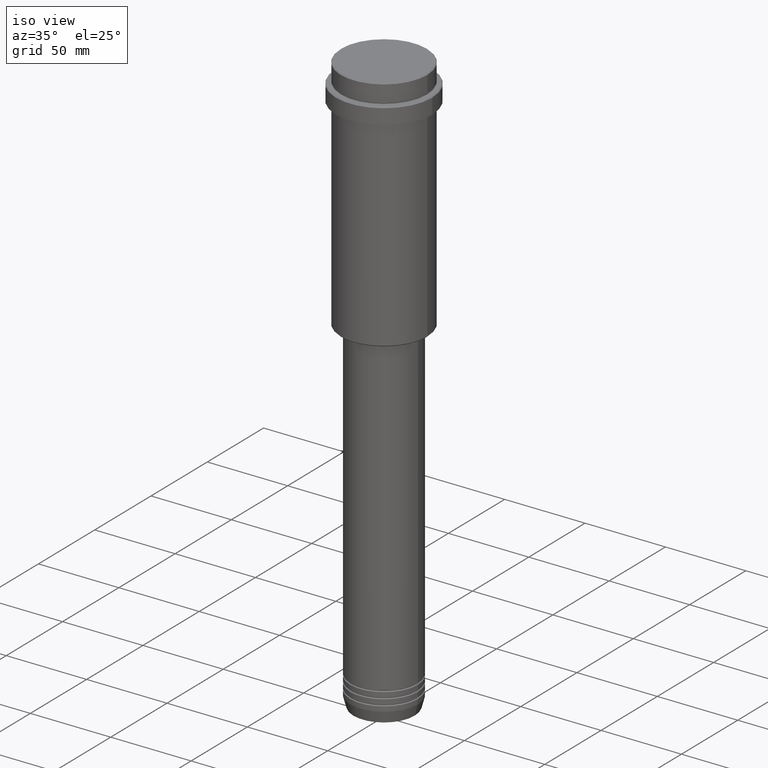
[diagram: clean part render]
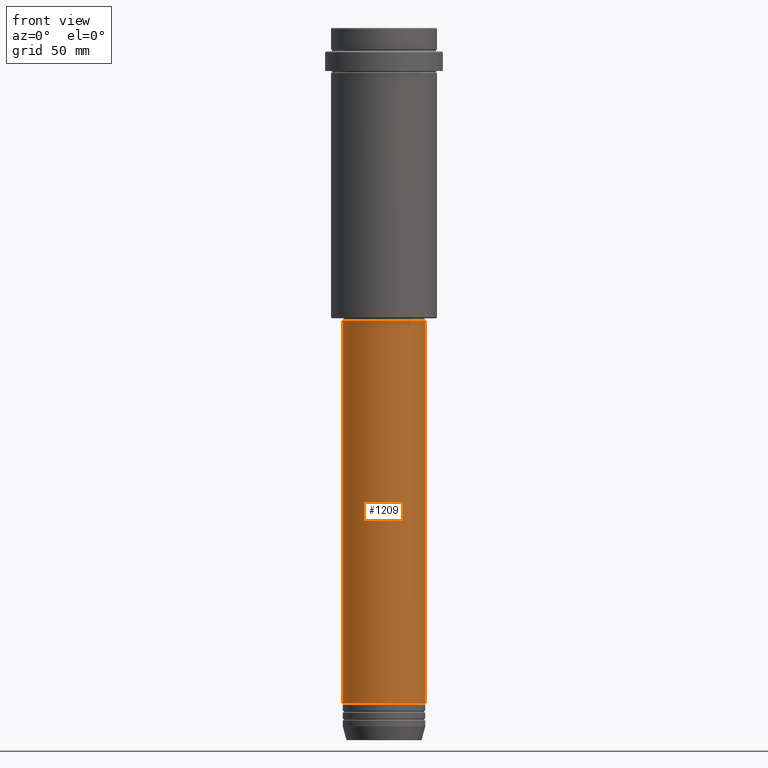
[diagram: tour spotlight — one face highlighted and labeled with its STEP entity id]
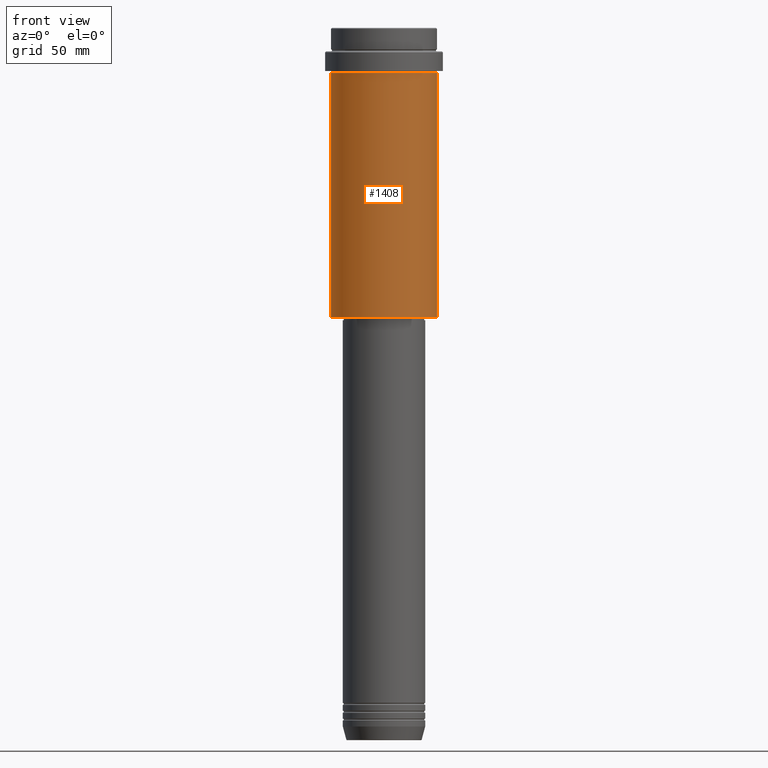
[diagram: tour spotlight — one face highlighted and labeled with its STEP entity id]
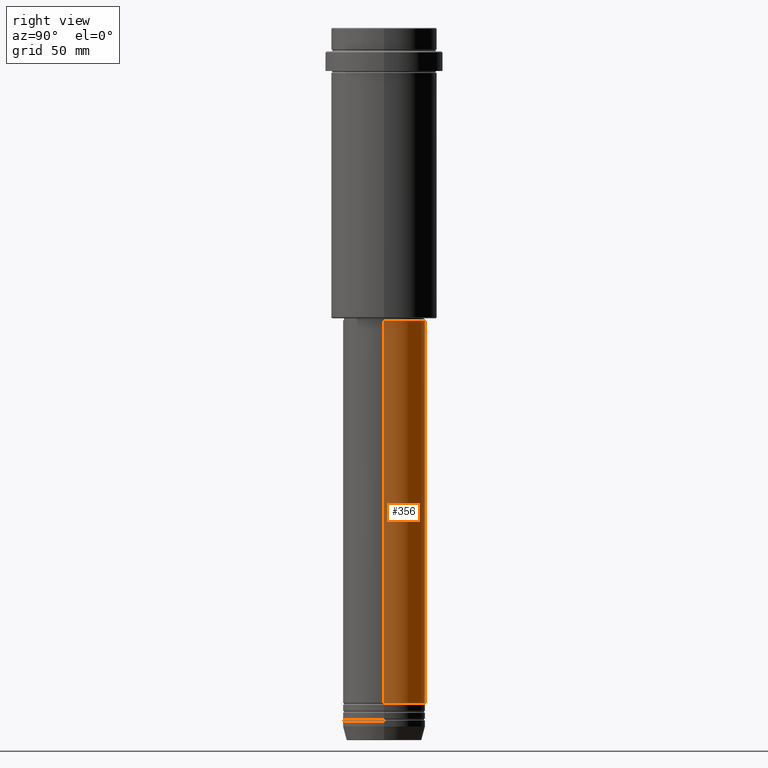
[diagram: tour spotlight — one face highlighted and labeled with its STEP entity id]
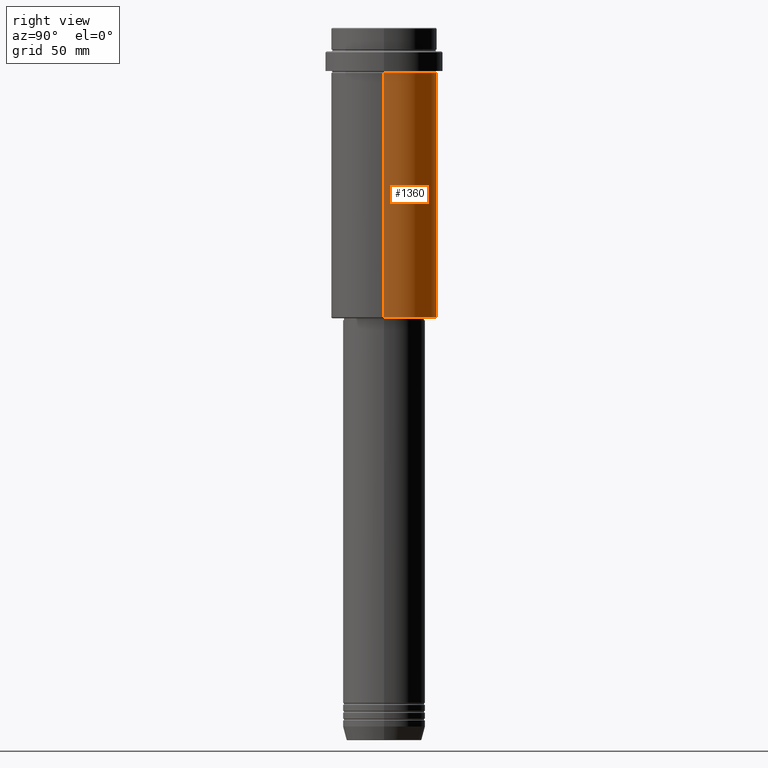
[diagram: tour spotlight — one face highlighted and labeled with its STEP entity id]
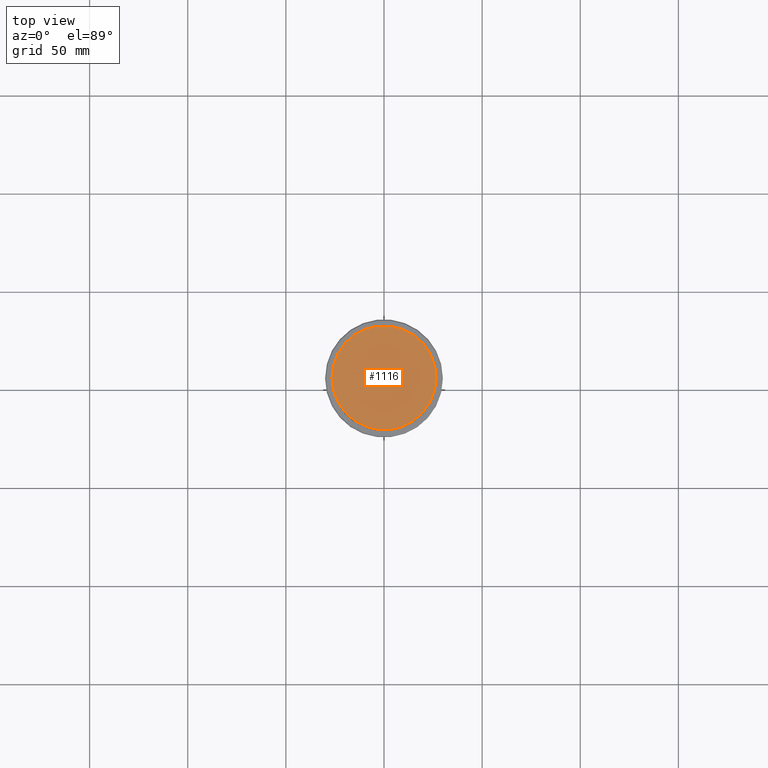
[diagram: tour spotlight — one face highlighted and labeled with its STEP entity id]
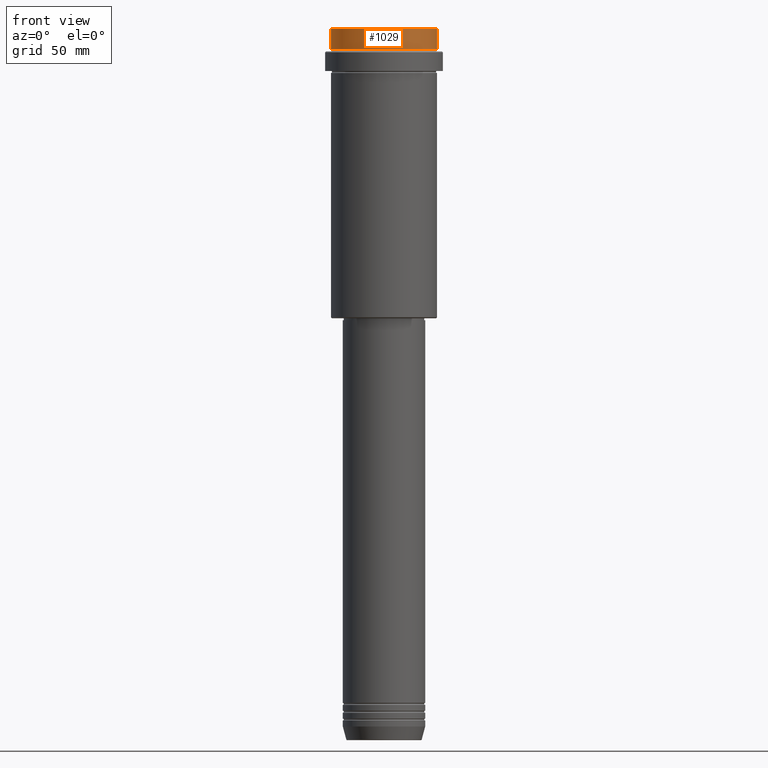
[diagram: tour spotlight — one face highlighted and labeled with its STEP entity id]
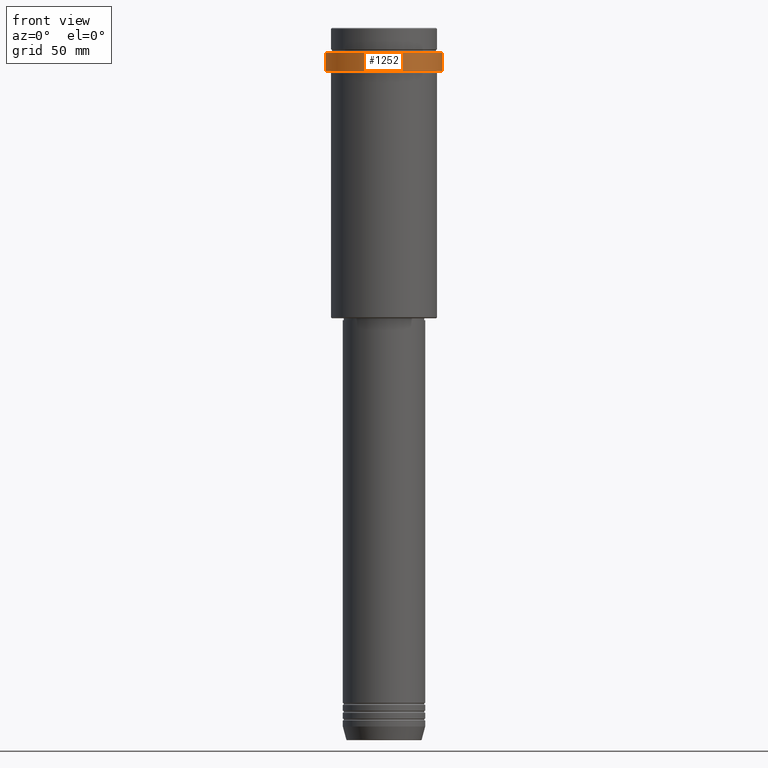
[diagram: tour spotlight — one face highlighted and labeled with its STEP entity id]
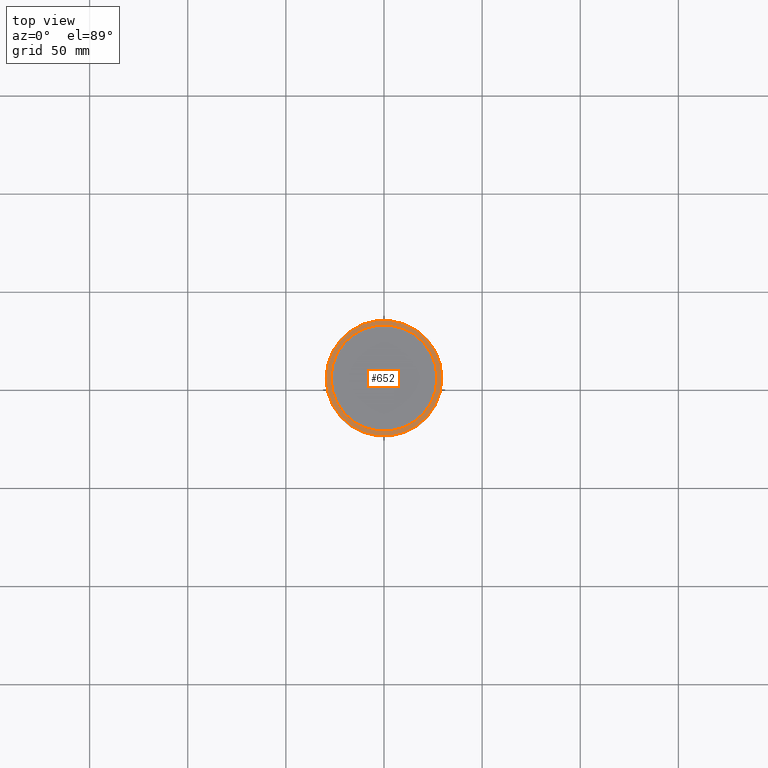
[diagram: tour spotlight — one face highlighted and labeled with its STEP entity id]
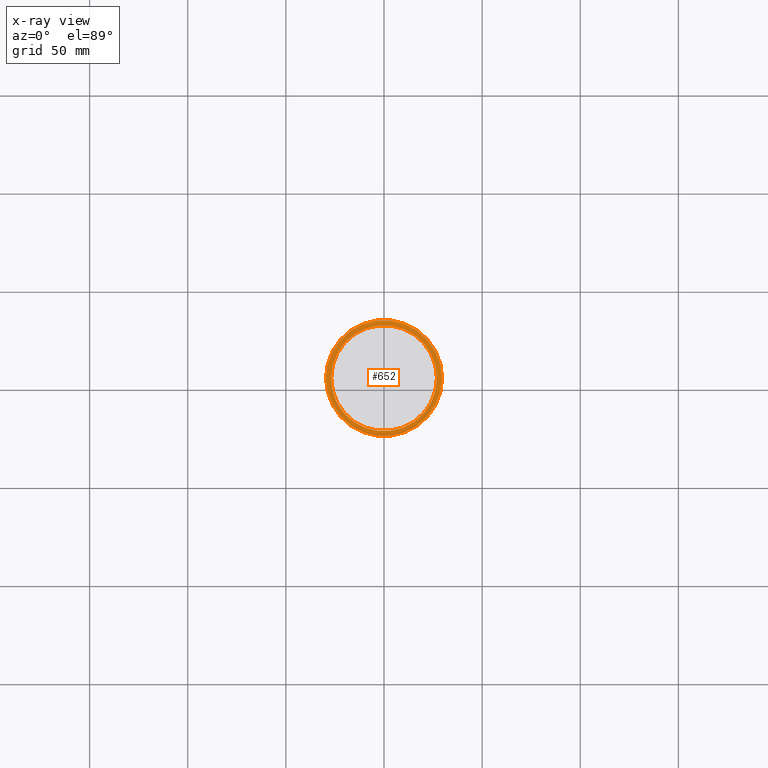
[diagram: x-ray of the same camera — body ghosted, this tour face saturated]
A machine part: a face-by-face anatomy tour. The part has 52 B-rep faces; the first image is the clean iso view, then the 8 largest visible faces are spotlighted one at a time (largest first), each with its STEP entity span.

Face 1 — front view, entity #1209. In plain terms, the highlighted cylindrical surface (partial cylindrical patch) has radius 21 mm, axis along (-0, -0, 1).
Definition (entity closure, byte-faithful):
#74 = DIRECTION ( 'NONE',  ( -0.000000000000000000, -0.000000000000000000, 1.000000000000000000 ) ) ;
#160 = AXIS2_PLACEMENT_3D ( 'NONE', #716, #598, #175 ) ;
#175 = DIRECTION ( 'NONE',  ( 1.000000000000000000, 0.000000000000000000, 0.000000000000000000 ) ) ;
#189 = DIRECTION ( 'NONE',  ( 1.000000000000000000, 0.000000000000000000, 0.000000000000000000 ) ) ;
#196 = FACE_OUTER_BOUND ( 'NONE', #800, .T. ) ;
#216 = VERTEX_POINT ( 'NONE', #629 ) ;
#219 = ORIENTED_EDGE ( 'NONE', *, *, #268, .T. ) ;
#268 = EDGE_CURVE ( 'NONE', #1096, #948, #340, .T. ) ;
#331 = ORIENTED_EDGE ( 'NONE', *, *, #1352, .F. ) ;
#340 = LINE ( 'NONE', #862, #588 ) ;
#423 = ORIENTED_EDGE ( 'NONE', *, *, #972, .T. ) ;
#432 = AXIS2_PLACEMENT_3D ( 'NONE', #960, #74, #189 ) ;
#457 = CARTESIAN_POINT ( 'NONE',  ( -21.00000000000000000, 2.571758278209441661E-15, -343.9999999999999432 ) ) ;
#487 = EDGE_CURVE ( 'NONE', #216, #948, #1118, .T. ) ;
#588 = VECTOR ( 'NONE', #638, 1000.000000000000000 ) ;
#595 = VECTOR ( 'NONE', #1082, 1000.000000000000000 ) ;
#598 = DIRECTION ( 'NONE',  ( -0.000000000000000000, -0.000000000000000000, 1.000000000000000000 ) ) ;
#629 = CARTESIAN_POINT ( 'NONE',  ( -20.99999999999999645, 2.571758278209441267E-15, -148.9999999999999716 ) ) ;
#638 = DIRECTION ( 'NONE',  ( -0.000000000000000000, -0.000000000000000000, 1.000000000000000000 ) ) ;
#657 = DIRECTION ( 'NONE',  ( -0.000000000000000000, -0.000000000000000000, 1.000000000000000000 ) ) ;
#670 = LINE ( 'NONE', #1203, #595 ) ;
#716 = CARTESIAN_POINT ( 'NONE',  ( 0.000000000000000000, 0.000000000000000000, -148.9999999999999716 ) ) ;
#722 = VERTEX_POINT ( 'NONE', #457 ) ;
#800 = EDGE_LOOP ( 'NONE', ( #331, #423, #219, #910 ) ) ;
#841 = CYLINDRICAL_SURFACE ( 'NONE', #432, 20.99999999999999645 ) ;
#862 = CARTESIAN_POINT ( 'NONE',  ( 20.99999999999999645, 0.000000000000000000, 0.000000000000000000 ) ) ;
#910 = ORIENTED_EDGE ( 'NONE', *, *, #487, .F. ) ;
#948 = VERTEX_POINT ( 'NONE', #1405 ) ;
#960 = CARTESIAN_POINT ( 'NONE',  ( 0.000000000000000000, 0.000000000000000000, 0.000000000000000000 ) ) ;
#972 = EDGE_CURVE ( 'NONE', #722, #1096, #1295, .T. ) ;
#1082 = DIRECTION ( 'NONE',  ( -0.000000000000000000, -0.000000000000000000, 1.000000000000000000 ) ) ;
#1096 = VERTEX_POINT ( 'NONE', #1344 ) ;
#1100 = CARTESIAN_POINT ( 'NONE',  ( 0.000000000000000000, 0.000000000000000000, -343.9999999999999432 ) ) ;
#1118 = CIRCLE ( 'NONE', #160, 20.99999999999999645 ) ;
#1121 = AXIS2_PLACEMENT_3D ( 'NONE', #1100, #657, #1299 ) ;
#1203 = CARTESIAN_POINT ( 'NONE',  ( -20.99999999999999645, 2.571758278209441267E-15, 0.000000000000000000 ) ) ;
#1209 = ADVANCED_FACE ( 'NONE', ( #196 ), #841, .T. ) ;
#1295 = CIRCLE ( 'NONE', #1121, 21.00000000000000000 ) ;
#1299 = DIRECTION ( 'NONE',  ( 1.000000000000000000, 0.000000000000000000, 0.000000000000000000 ) ) ;
#1344 = CARTESIAN_POINT ( 'NONE',  ( 21.00000000000000000, 0.000000000000000000, -343.9999999999999432 ) ) ;
#1352 = EDGE_CURVE ( 'NONE', #722, #216, #670, .T. ) ;
#1405 = CARTESIAN_POINT ( 'NONE',  ( 20.99999999999999645, 0.000000000000000000, -148.9999999999999716 ) ) ;

Face 2 — front view, entity #1408. In plain terms, the highlighted cylindrical surface (partial cylindrical patch) has radius 27 mm, axis along (-0, -0, 1).
Definition (entity closure, byte-faithful):
#10 = CARTESIAN_POINT ( 'NONE',  ( 0.000000000000000000, 0.000000000000000000, -23.00000000000000000 ) ) ;
#149 = ORIENTED_EDGE ( 'NONE', *, *, #265, .T. ) ;
#158 = AXIS2_PLACEMENT_3D ( 'NONE', #205, #1199, #879 ) ;
#205 = CARTESIAN_POINT ( 'NONE',  ( 0.000000000000000000, 0.000000000000000000, -147.5000000000001421 ) ) ;
#221 = VERTEX_POINT ( 'NONE', #1284 ) ;
#240 = DIRECTION ( 'NONE',  ( 1.000000000000000000, 0.000000000000000000, 0.000000000000000000 ) ) ;
#249 = VECTOR ( 'NONE', #721, 1000.000000000000000 ) ;
#265 = EDGE_CURVE ( 'NONE', #956, #221, #1138, .T. ) ;
#347 = DIRECTION ( 'NONE',  ( 1.000000000000000000, 0.000000000000000000, 0.000000000000000000 ) ) ;
#435 = DIRECTION ( 'NONE',  ( -0.000000000000000000, -0.000000000000000000, 1.000000000000000000 ) ) ;
#543 = ORIENTED_EDGE ( 'NONE', *, *, #1279, .F. ) ;
#615 = VECTOR ( 'NONE', #933, 1000.000000000000000 ) ;
#721 = DIRECTION ( 'NONE',  ( -0.000000000000000000, -0.000000000000000000, 1.000000000000000000 ) ) ;
#809 = EDGE_CURVE ( 'NONE', #221, #837, #843, .T. ) ;
#837 = VERTEX_POINT ( 'NONE', #851 ) ;
#843 = LINE ( 'NONE', #1368, #249 ) ;
#851 = CARTESIAN_POINT ( 'NONE',  ( 26.99999999999999645, 0.000000000000000000, -23.00000000000000000 ) ) ;
#879 = DIRECTION ( 'NONE',  ( -1.000000000000000000, 0.000000000000000000, 0.000000000000000000 ) ) ;
#933 = DIRECTION ( 'NONE',  ( -0.000000000000000000, -0.000000000000000000, 1.000000000000000000 ) ) ;
#956 = VERTEX_POINT ( 'NONE', #1080 ) ;
#963 = AXIS2_PLACEMENT_3D ( 'NONE', #10, #435, #240 ) ;
#981 = CARTESIAN_POINT ( 'NONE',  ( 0.000000000000000000, 0.000000000000000000, 0.000000000000000000 ) ) ;
#989 = DIRECTION ( 'NONE',  ( -0.000000000000000000, -0.000000000000000000, 1.000000000000000000 ) ) ;
#1051 = EDGE_CURVE ( 'NONE', #1369, #837, #1298, .T. ) ;
#1052 = ORIENTED_EDGE ( 'NONE', *, *, #809, .T. ) ;
#1080 = CARTESIAN_POINT ( 'NONE',  ( -26.99999999999999645, 3.306546357697853339E-15, -147.5000000000001421 ) ) ;
#1088 = FACE_OUTER_BOUND ( 'NONE', #1331, .T. ) ;
#1138 = CIRCLE ( 'NONE', #158, 26.99999999999999645 ) ;
#1143 = AXIS2_PLACEMENT_3D ( 'NONE', #981, #989, #347 ) ;
#1148 = ORIENTED_EDGE ( 'NONE', *, *, #1051, .F. ) ;
#1175 = CARTESIAN_POINT ( 'NONE',  ( -26.99999999999999645, 3.306546357697853339E-15, 0.000000000000000000 ) ) ;
#1199 = DIRECTION ( 'NONE',  ( -0.000000000000000000, -0.000000000000000000, 1.000000000000000000 ) ) ;
#1210 = CARTESIAN_POINT ( 'NONE',  ( -26.99999999999999645, 3.306546357697853339E-15, -23.00000000000000000 ) ) ;
#1279 = EDGE_CURVE ( 'NONE', #956, #1369, #1395, .T. ) ;
#1284 = CARTESIAN_POINT ( 'NONE',  ( 26.99999999999999645, 0.000000000000000000, -147.5000000000001421 ) ) ;
#1298 = CIRCLE ( 'NONE', #963, 26.99999999999999645 ) ;
#1317 = CYLINDRICAL_SURFACE ( 'NONE', #1143, 26.99999999999999645 ) ;
#1331 = EDGE_LOOP ( 'NONE', ( #543, #149, #1052, #1148 ) ) ;
#1368 = CARTESIAN_POINT ( 'NONE',  ( 26.99999999999999645, 0.000000000000000000, 0.000000000000000000 ) ) ;
#1369 = VERTEX_POINT ( 'NONE', #1210 ) ;
#1395 = LINE ( 'NONE', #1175, #615 ) ;
#1408 = ADVANCED_FACE ( 'NONE', ( #1088 ), #1317, .T. ) ;

Face 3 — right view, entity #356. In plain terms, the highlighted cylindrical surface (partial cylindrical patch) has radius 21 mm, axis along (-0, -0, 1).
Definition (entity closure, byte-faithful):
#2 = ORIENTED_EDGE ( 'NONE', *, *, #603, .F. ) ;
#36 = ORIENTED_EDGE ( 'NONE', *, *, #1107, .T. ) ;
#152 = DIRECTION ( 'NONE',  ( 1.000000000000000000, 0.000000000000000000, 0.000000000000000000 ) ) ;
#216 = VERTEX_POINT ( 'NONE', #629 ) ;
#268 = EDGE_CURVE ( 'NONE', #1096, #948, #340, .T. ) ;
#269 = CARTESIAN_POINT ( 'NONE',  ( 0.000000000000000000, 0.000000000000000000, -343.9999999999999432 ) ) ;
#324 = AXIS2_PLACEMENT_3D ( 'NONE', #580, #1241, #152 ) ;
#340 = LINE ( 'NONE', #862, #588 ) ;
#348 = AXIS2_PLACEMENT_3D ( 'NONE', #269, #707, #1015 ) ;
#356 = ADVANCED_FACE ( 'NONE', ( #1237 ), #901, .T. ) ;
#406 = ORIENTED_EDGE ( 'NONE', *, *, #1352, .T. ) ;
#457 = CARTESIAN_POINT ( 'NONE',  ( -21.00000000000000000, 2.571758278209441661E-15, -343.9999999999999432 ) ) ;
#524 = CIRCLE ( 'NONE', #324, 20.99999999999999645 ) ;
#575 = ORIENTED_EDGE ( 'NONE', *, *, #268, .F. ) ;
#580 = CARTESIAN_POINT ( 'NONE',  ( 0.000000000000000000, 0.000000000000000000, -148.9999999999999716 ) ) ;
#588 = VECTOR ( 'NONE', #638, 1000.000000000000000 ) ;
#595 = VECTOR ( 'NONE', #1082, 1000.000000000000000 ) ;
#603 = EDGE_CURVE ( 'NONE', #948, #216, #524, .T. ) ;
#629 = CARTESIAN_POINT ( 'NONE',  ( -20.99999999999999645, 2.571758278209441267E-15, -148.9999999999999716 ) ) ;
#638 = DIRECTION ( 'NONE',  ( -0.000000000000000000, -0.000000000000000000, 1.000000000000000000 ) ) ;
#670 = LINE ( 'NONE', #1203, #595 ) ;
#689 = CARTESIAN_POINT ( 'NONE',  ( 0.000000000000000000, 0.000000000000000000, 0.000000000000000000 ) ) ;
#707 = DIRECTION ( 'NONE',  ( -0.000000000000000000, -0.000000000000000000, 1.000000000000000000 ) ) ;
#722 = VERTEX_POINT ( 'NONE', #457 ) ;
#862 = CARTESIAN_POINT ( 'NONE',  ( 20.99999999999999645, 0.000000000000000000, 0.000000000000000000 ) ) ;
#901 = CYLINDRICAL_SURFACE ( 'NONE', #1003, 20.99999999999999645 ) ;
#948 = VERTEX_POINT ( 'NONE', #1405 ) ;
#1003 = AXIS2_PLACEMENT_3D ( 'NONE', #689, #1325, #1125 ) ;
#1015 = DIRECTION ( 'NONE',  ( 1.000000000000000000, 0.000000000000000000, 0.000000000000000000 ) ) ;
#1082 = DIRECTION ( 'NONE',  ( -0.000000000000000000, -0.000000000000000000, 1.000000000000000000 ) ) ;
#1096 = VERTEX_POINT ( 'NONE', #1344 ) ;
#1107 = EDGE_CURVE ( 'NONE', #1096, #722, #1386, .T. ) ;
#1125 = DIRECTION ( 'NONE',  ( 1.000000000000000000, 0.000000000000000000, 0.000000000000000000 ) ) ;
#1203 = CARTESIAN_POINT ( 'NONE',  ( -20.99999999999999645, 2.571758278209441267E-15, 0.000000000000000000 ) ) ;
#1237 = FACE_OUTER_BOUND ( 'NONE', #1239, .T. ) ;
#1239 = EDGE_LOOP ( 'NONE', ( #36, #406, #2, #575 ) ) ;
#1241 = DIRECTION ( 'NONE',  ( -0.000000000000000000, -0.000000000000000000, 1.000000000000000000 ) ) ;
#1325 = DIRECTION ( 'NONE',  ( -0.000000000000000000, -0.000000000000000000, 1.000000000000000000 ) ) ;
#1344 = CARTESIAN_POINT ( 'NONE',  ( 21.00000000000000000, 0.000000000000000000, -343.9999999999999432 ) ) ;
#1352 = EDGE_CURVE ( 'NONE', #722, #216, #670, .T. ) ;
#1386 = CIRCLE ( 'NONE', #348, 21.00000000000000000 ) ;
#1405 = CARTESIAN_POINT ( 'NONE',  ( 20.99999999999999645, 0.000000000000000000, -148.9999999999999716 ) ) ;

Face 4 — right view, entity #1360. In plain terms, the highlighted cylindrical surface (partial cylindrical patch) has radius 27 mm, axis along (-0, -0, 1).
Definition (entity closure, byte-faithful):
#1 = EDGE_CURVE ( 'NONE', #221, #956, #292, .T. ) ;
#42 = CARTESIAN_POINT ( 'NONE',  ( 0.000000000000000000, 0.000000000000000000, -147.5000000000001421 ) ) ;
#44 = CIRCLE ( 'NONE', #686, 26.99999999999999645 ) ;
#61 = EDGE_LOOP ( 'NONE', ( #167, #246, #774, #129 ) ) ;
#129 = ORIENTED_EDGE ( 'NONE', *, *, #809, .F. ) ;
#167 = ORIENTED_EDGE ( 'NONE', *, *, #1, .T. ) ;
#221 = VERTEX_POINT ( 'NONE', #1284 ) ;
#225 = DIRECTION ( 'NONE',  ( 1.000000000000000000, 0.000000000000000000, 0.000000000000000000 ) ) ;
#246 = ORIENTED_EDGE ( 'NONE', *, *, #1279, .T. ) ;
#249 = VECTOR ( 'NONE', #721, 1000.000000000000000 ) ;
#292 = CIRCLE ( 'NONE', #858, 26.99999999999999645 ) ;
#305 = DIRECTION ( 'NONE',  ( -0.000000000000000000, -0.000000000000000000, 1.000000000000000000 ) ) ;
#433 = FACE_OUTER_BOUND ( 'NONE', #61, .T. ) ;
#480 = DIRECTION ( 'NONE',  ( -0.000000000000000000, -0.000000000000000000, 1.000000000000000000 ) ) ;
#527 = CARTESIAN_POINT ( 'NONE',  ( 0.000000000000000000, 0.000000000000000000, -23.00000000000000000 ) ) ;
#552 = CYLINDRICAL_SURFACE ( 'NONE', #915, 26.99999999999999645 ) ;
#615 = VECTOR ( 'NONE', #933, 1000.000000000000000 ) ;
#686 = AXIS2_PLACEMENT_3D ( 'NONE', #527, #305, #719 ) ;
#719 = DIRECTION ( 'NONE',  ( 1.000000000000000000, 0.000000000000000000, 0.000000000000000000 ) ) ;
#721 = DIRECTION ( 'NONE',  ( -0.000000000000000000, -0.000000000000000000, 1.000000000000000000 ) ) ;
#759 = CARTESIAN_POINT ( 'NONE',  ( 0.000000000000000000, 0.000000000000000000, 0.000000000000000000 ) ) ;
#774 = ORIENTED_EDGE ( 'NONE', *, *, #1236, .F. ) ;
#809 = EDGE_CURVE ( 'NONE', #221, #837, #843, .T. ) ;
#837 = VERTEX_POINT ( 'NONE', #851 ) ;
#843 = LINE ( 'NONE', #1368, #249 ) ;
#851 = CARTESIAN_POINT ( 'NONE',  ( 26.99999999999999645, 0.000000000000000000, -23.00000000000000000 ) ) ;
#858 = AXIS2_PLACEMENT_3D ( 'NONE', #42, #480, #947 ) ;
#870 = DIRECTION ( 'NONE',  ( -0.000000000000000000, -0.000000000000000000, 1.000000000000000000 ) ) ;
#915 = AXIS2_PLACEMENT_3D ( 'NONE', #759, #870, #225 ) ;
#933 = DIRECTION ( 'NONE',  ( -0.000000000000000000, -0.000000000000000000, 1.000000000000000000 ) ) ;
#947 = DIRECTION ( 'NONE',  ( -1.000000000000000000, 0.000000000000000000, 0.000000000000000000 ) ) ;
#956 = VERTEX_POINT ( 'NONE', #1080 ) ;
#1080 = CARTESIAN_POINT ( 'NONE',  ( -26.99999999999999645, 3.306546357697853339E-15, -147.5000000000001421 ) ) ;
#1175 = CARTESIAN_POINT ( 'NONE',  ( -26.99999999999999645, 3.306546357697853339E-15, 0.000000000000000000 ) ) ;
#1210 = CARTESIAN_POINT ( 'NONE',  ( -26.99999999999999645, 3.306546357697853339E-15, -23.00000000000000000 ) ) ;
#1236 = EDGE_CURVE ( 'NONE', #837, #1369, #44, .T. ) ;
#1279 = EDGE_CURVE ( 'NONE', #956, #1369, #1395, .T. ) ;
#1284 = CARTESIAN_POINT ( 'NONE',  ( 26.99999999999999645, 0.000000000000000000, -147.5000000000001421 ) ) ;
#1360 = ADVANCED_FACE ( 'NONE', ( #433 ), #552, .T. ) ;
#1368 = CARTESIAN_POINT ( 'NONE',  ( 26.99999999999999645, 0.000000000000000000, 0.000000000000000000 ) ) ;
#1369 = VERTEX_POINT ( 'NONE', #1210 ) ;
#1395 = LINE ( 'NONE', #1175, #615 ) ;

Face 5 — top view, entity #1116. In plain terms, the highlighted planar face has unit normal (0, -0, 1).
Definition (entity closure, byte-faithful):
#30 = PLANE ( 'NONE',  #72 ) ;
#38 = FACE_OUTER_BOUND ( 'NONE', #1305, .T. ) ;
#72 = AXIS2_PLACEMENT_3D ( 'NONE', #803, #693, #490 ) ;
#98 = VERTEX_POINT ( 'NONE', #183 ) ;
#140 = CIRCLE ( 'NONE', #1274, 26.49999999999996803 ) ;
#183 = CARTESIAN_POINT ( 'NONE',  ( -26.49999999999996803, 0.000000000000000000, 0.000000000000000000 ) ) ;
#451 = CIRCLE ( 'NONE', #1246, 26.49999999999996803 ) ;
#464 = DIRECTION ( 'NONE',  ( -0.000000000000000000, -0.000000000000000000, 1.000000000000000000 ) ) ;
#469 = CARTESIAN_POINT ( 'NONE',  ( 0.000000000000000000, 0.000000000000000000, 0.000000000000000000 ) ) ;
#490 = DIRECTION ( 'NONE',  ( 1.000000000000000000, 0.000000000000000000, 0.000000000000000000 ) ) ;
#568 = EDGE_CURVE ( 'NONE', #927, #98, #451, .T. ) ;
#668 = ORIENTED_EDGE ( 'NONE', *, *, #568, .T. ) ;
#693 = DIRECTION ( 'NONE',  ( 0.000000000000000000, -0.000000000000000000, 1.000000000000000000 ) ) ;
#778 = CARTESIAN_POINT ( 'NONE',  ( 26.49999999999996803, 3.275930187719167580E-15, 0.000000000000000000 ) ) ;
#803 = CARTESIAN_POINT ( 'NONE',  ( 0.000000000000000000, 0.000000000000000000, 0.000000000000000000 ) ) ;
#829 = ORIENTED_EDGE ( 'NONE', *, *, #1001, .T. ) ;
#892 = DIRECTION ( 'NONE',  ( 1.000000000000000000, 0.000000000000000000, 0.000000000000000000 ) ) ;
#900 = DIRECTION ( 'NONE',  ( 1.000000000000000000, 0.000000000000000000, 0.000000000000000000 ) ) ;
#927 = VERTEX_POINT ( 'NONE', #778 ) ;
#1000 = CARTESIAN_POINT ( 'NONE',  ( 0.000000000000000000, 0.000000000000000000, 0.000000000000000000 ) ) ;
#1001 = EDGE_CURVE ( 'NONE', #98, #927, #140, .T. ) ;
#1116 = ADVANCED_FACE ( 'NONE', ( #38 ), #30, .T. ) ;
#1213 = DIRECTION ( 'NONE',  ( -0.000000000000000000, -0.000000000000000000, 1.000000000000000000 ) ) ;
#1246 = AXIS2_PLACEMENT_3D ( 'NONE', #469, #464, #900 ) ;
#1274 = AXIS2_PLACEMENT_3D ( 'NONE', #1000, #1213, #892 ) ;
#1305 = EDGE_LOOP ( 'NONE', ( #829, #668 ) ) ;

Face 6 — front view, entity #1029. In plain terms, the highlighted cylindrical surface (partial cylindrical patch) has radius 27 mm, axis along (-0, -0, 1).
Definition (entity closure, byte-faithful):
#4 = DIRECTION ( 'NONE',  ( 1.000000000000000000, 0.000000000000000000, 0.000000000000000000 ) ) ;
#35 = EDGE_CURVE ( 'NONE', #1012, #334, #788, .T. ) ;
#49 = EDGE_CURVE ( 'NONE', #334, #895, #1392, .T. ) ;
#84 = DIRECTION ( 'NONE',  ( 1.000000000000000000, 0.000000000000000000, 0.000000000000000000 ) ) ;
#94 = AXIS2_PLACEMENT_3D ( 'NONE', #957, #1302, #409 ) ;
#104 = DIRECTION ( 'NONE',  ( -0.000000000000000000, -0.000000000000000000, 1.000000000000000000 ) ) ;
#112 = EDGE_LOOP ( 'NONE', ( #444, #193, #133, #988 ) ) ;
#130 = CARTESIAN_POINT ( 'NONE',  ( 26.99999999999999645, 0.000000000000000000, -0.5000000000000316414 ) ) ;
#133 = ORIENTED_EDGE ( 'NONE', *, *, #49, .T. ) ;
#193 = ORIENTED_EDGE ( 'NONE', *, *, #35, .T. ) ;
#297 = CARTESIAN_POINT ( 'NONE',  ( 26.99999999999999645, 0.000000000000000000, 0.000000000000000000 ) ) ;
#330 = FACE_OUTER_BOUND ( 'NONE', #112, .T. ) ;
#334 = VERTEX_POINT ( 'NONE', #1033 ) ;
#409 = DIRECTION ( 'NONE',  ( 1.000000000000000000, 0.000000000000000000, 0.000000000000000000 ) ) ;
#440 = CARTESIAN_POINT ( 'NONE',  ( 0.000000000000000000, 0.000000000000000000, 0.000000000000000000 ) ) ;
#444 = ORIENTED_EDGE ( 'NONE', *, *, #1208, .F. ) ;
#472 = VECTOR ( 'NONE', #1178, 1000.000000000000000 ) ;
#526 = AXIS2_PLACEMENT_3D ( 'NONE', #440, #104, #4 ) ;
#531 = EDGE_CURVE ( 'NONE', #895, #1076, #1139, .T. ) ;
#687 = CARTESIAN_POINT ( 'NONE',  ( -26.99999999999999645, 3.306546357697853339E-15, -0.5000000000000316414 ) ) ;
#738 = DIRECTION ( 'NONE',  ( -0.000000000000000000, -0.000000000000000000, 1.000000000000000000 ) ) ;
#782 = CARTESIAN_POINT ( 'NONE',  ( -26.99999999999999645, 3.306546357697853339E-15, -11.00000000000000178 ) ) ;
#788 = CIRCLE ( 'NONE', #1187, 26.99999999999999645 ) ;
#885 = CYLINDRICAL_SURFACE ( 'NONE', #526, 26.99999999999999645 ) ;
#895 = VERTEX_POINT ( 'NONE', #130 ) ;
#951 = CARTESIAN_POINT ( 'NONE',  ( -26.99999999999999645, 3.306546357697853339E-15, 0.000000000000000000 ) ) ;
#957 = CARTESIAN_POINT ( 'NONE',  ( 0.000000000000000000, 0.000000000000000000, -0.5000000000000316414 ) ) ;
#988 = ORIENTED_EDGE ( 'NONE', *, *, #531, .T. ) ;
#1012 = VERTEX_POINT ( 'NONE', #782 ) ;
#1029 = ADVANCED_FACE ( 'NONE', ( #330 ), #885, .T. ) ;
#1033 = CARTESIAN_POINT ( 'NONE',  ( 26.99999999999999645, 0.000000000000000000, -11.00000000000000178 ) ) ;
#1075 = DIRECTION ( 'NONE',  ( -0.000000000000000000, -0.000000000000000000, 1.000000000000000000 ) ) ;
#1076 = VERTEX_POINT ( 'NONE', #687 ) ;
#1139 = CIRCLE ( 'NONE', #94, 26.99999999999999645 ) ;
#1171 = CARTESIAN_POINT ( 'NONE',  ( 0.000000000000000000, 0.000000000000000000, -11.00000000000000178 ) ) ;
#1178 = DIRECTION ( 'NONE',  ( -0.000000000000000000, -0.000000000000000000, 1.000000000000000000 ) ) ;
#1187 = AXIS2_PLACEMENT_3D ( 'NONE', #1171, #1075, #84 ) ;
#1208 = EDGE_CURVE ( 'NONE', #1012, #1076, #1275, .T. ) ;
#1275 = LINE ( 'NONE', #951, #1276 ) ;
#1276 = VECTOR ( 'NONE', #738, 1000.000000000000000 ) ;
#1302 = DIRECTION ( 'NONE',  ( 0.000000000000000000, 0.000000000000000000, -1.000000000000000000 ) ) ;
#1392 = LINE ( 'NONE', #297, #472 ) ;

Face 7 — front view, entity #1252. In plain terms, the highlighted cylindrical surface (partial cylindrical patch) has radius 30 mm, axis along (-0, -0, 1).
Definition (entity closure, byte-faithful):
#32 = CARTESIAN_POINT ( 'NONE',  ( -30.00000000000000000, 3.673940397442059178E-15, -12.50000000000006573 ) ) ;
#58 = EDGE_CURVE ( 'NONE', #176, #590, #1286, .T. ) ;
#60 = CARTESIAN_POINT ( 'NONE',  ( 30.00000000000000000, 0.000000000000000000, -12.50000000000006573 ) ) ;
#73 = ORIENTED_EDGE ( 'NONE', *, *, #952, .T. ) ;
#81 = CARTESIAN_POINT ( 'NONE',  ( -29.99999999999999645, 3.673940397442058389E-15, -22.00000000000000355 ) ) ;
#131 = DIRECTION ( 'NONE',  ( -0.000000000000000000, -0.000000000000000000, 1.000000000000000000 ) ) ;
#176 = VERTEX_POINT ( 'NONE', #1265 ) ;
#208 = CARTESIAN_POINT ( 'NONE',  ( 30.00000000000000000, 0.000000000000000000, 0.000000000000000000 ) ) ;
#224 = ORIENTED_EDGE ( 'NONE', *, *, #58, .T. ) ;
#236 = DIRECTION ( 'NONE',  ( 1.000000000000000000, 0.000000000000000000, 0.000000000000000000 ) ) ;
#257 = ORIENTED_EDGE ( 'NONE', *, *, #733, .T. ) ;
#277 = DIRECTION ( 'NONE',  ( -0.000000000000000000, -0.000000000000000000, 1.000000000000000000 ) ) ;
#311 = FACE_OUTER_BOUND ( 'NONE', #461, .T. ) ;
#323 = VECTOR ( 'NONE', #131, 1000.000000000000000 ) ;
#364 = AXIS2_PLACEMENT_3D ( 'NONE', #881, #564, #236 ) ;
#399 = CYLINDRICAL_SURFACE ( 'NONE', #685, 30.00000000000000000 ) ;
#407 = AXIS2_PLACEMENT_3D ( 'NONE', #784, #633, #415 ) ;
#415 = DIRECTION ( 'NONE',  ( 1.000000000000000000, 0.000000000000000000, 0.000000000000000000 ) ) ;
#461 = EDGE_LOOP ( 'NONE', ( #1204, #257, #224, #73 ) ) ;
#557 = EDGE_CURVE ( 'NONE', #1282, #666, #608, .T. ) ;
#564 = DIRECTION ( 'NONE',  ( 0.000000000000000000, 0.000000000000000000, -1.000000000000000000 ) ) ;
#590 = VERTEX_POINT ( 'NONE', #60 ) ;
#608 = LINE ( 'NONE', #1106, #323 ) ;
#633 = DIRECTION ( 'NONE',  ( -0.000000000000000000, -0.000000000000000000, 1.000000000000000000 ) ) ;
#666 = VERTEX_POINT ( 'NONE', #32 ) ;
#683 = CIRCLE ( 'NONE', #364, 30.00000000000000000 ) ;
#685 = AXIS2_PLACEMENT_3D ( 'NONE', #1068, #277, #1053 ) ;
#733 = EDGE_CURVE ( 'NONE', #1282, #176, #757, .T. ) ;
#753 = VECTOR ( 'NONE', #973, 1000.000000000000000 ) ;
#757 = CIRCLE ( 'NONE', #407, 29.99999999999999645 ) ;
#784 = CARTESIAN_POINT ( 'NONE',  ( 0.000000000000000000, 0.000000000000000000, -22.00000000000000355 ) ) ;
#881 = CARTESIAN_POINT ( 'NONE',  ( 0.000000000000000000, 0.000000000000000000, -12.50000000000006573 ) ) ;
#952 = EDGE_CURVE ( 'NONE', #590, #666, #683, .T. ) ;
#973 = DIRECTION ( 'NONE',  ( -0.000000000000000000, -0.000000000000000000, 1.000000000000000000 ) ) ;
#1053 = DIRECTION ( 'NONE',  ( 1.000000000000000000, 0.000000000000000000, 0.000000000000000000 ) ) ;
#1068 = CARTESIAN_POINT ( 'NONE',  ( 0.000000000000000000, 0.000000000000000000, 0.000000000000000000 ) ) ;
#1106 = CARTESIAN_POINT ( 'NONE',  ( -30.00000000000000000, 3.673940397442059178E-15, 0.000000000000000000 ) ) ;
#1204 = ORIENTED_EDGE ( 'NONE', *, *, #557, .F. ) ;
#1252 = ADVANCED_FACE ( 'NONE', ( #311 ), #399, .T. ) ;
#1265 = CARTESIAN_POINT ( 'NONE',  ( 29.99999999999999645, 0.000000000000000000, -22.00000000000000355 ) ) ;
#1282 = VERTEX_POINT ( 'NONE', #81 ) ;
#1286 = LINE ( 'NONE', #208, #753 ) ;

Face 8 — top view, entity #652. An x-ray twin of the same camera follows (body ghosted, this face saturated) — the face is partly hidden behind the body. In plain terms, the highlighted planar face has unit normal (0, -0, 1).
Definition (entity closure, byte-faithful):
#106 = EDGE_CURVE ( 'NONE', #1081, #384, #724, .T. ) ;
#109 = CARTESIAN_POINT ( 'NONE',  ( -29.49999999999991473, 0.000000000000000000, -12.00000000000000178 ) ) ;
#151 = DIRECTION ( 'NONE',  ( 0.000000000000000000, 0.000000000000000000, -1.000000000000000000 ) ) ;
#211 = AXIS2_PLACEMENT_3D ( 'NONE', #1017, #447, #903 ) ;
#259 = EDGE_CURVE ( 'NONE', #802, #1399, #544, .T. ) ;
#319 = EDGE_CURVE ( 'NONE', #384, #1081, #1319, .T. ) ;
#384 = VERTEX_POINT ( 'NONE', #783 ) ;
#445 = DIRECTION ( 'NONE',  ( 1.000000000000000000, 0.000000000000000000, 0.000000000000000000 ) ) ;
#447 = DIRECTION ( 'NONE',  ( 0.000000000000000000, -0.000000000000000000, 1.000000000000000000 ) ) ;
#476 = EDGE_LOOP ( 'NONE', ( #489, #1130 ) ) ;
#489 = ORIENTED_EDGE ( 'NONE', *, *, #106, .T. ) ;
#534 = CARTESIAN_POINT ( 'NONE',  ( 0.000000000000000000, 0.000000000000000000, -12.00000000000000178 ) ) ;
#536 = DIRECTION ( 'NONE',  ( 1.000000000000000000, 0.000000000000000000, 0.000000000000000000 ) ) ;
#537 = ORIENTED_EDGE ( 'NONE', *, *, #930, .T. ) ;
#544 = CIRCLE ( 'NONE', #569, 29.49999999999991473 ) ;
#569 = AXIS2_PLACEMENT_3D ( 'NONE', #534, #977, #1404 ) ;
#601 = CARTESIAN_POINT ( 'NONE',  ( 26.99999999999999289, 0.000000000000000000, -12.00000000000000178 ) ) ;
#637 = AXIS2_PLACEMENT_3D ( 'NONE', #1049, #979, #536 ) ;
#652 = ADVANCED_FACE ( 'NONE', ( #1109, #999 ), #679, .T. ) ;
#679 = PLANE ( 'NONE',  #211 ) ;
#694 = DIRECTION ( 'NONE',  ( 1.000000000000000000, 0.000000000000000000, 0.000000000000000000 ) ) ;
#724 = CIRCLE ( 'NONE', #637, 26.99999999999999289 ) ;
#783 = CARTESIAN_POINT ( 'NONE',  ( -26.99999999999999289, 3.306546357697852944E-15, -12.00000000000000178 ) ) ;
#802 = VERTEX_POINT ( 'NONE', #971 ) ;
#887 = AXIS2_PLACEMENT_3D ( 'NONE', #921, #151, #694 ) ;
#903 = DIRECTION ( 'NONE',  ( 1.000000000000000000, 0.000000000000000000, 0.000000000000000000 ) ) ;
#921 = CARTESIAN_POINT ( 'NONE',  ( 0.000000000000000000, 0.000000000000000000, -12.00000000000000178 ) ) ;
#930 = EDGE_CURVE ( 'NONE', #1399, #802, #1412, .T. ) ;
#971 = CARTESIAN_POINT ( 'NONE',  ( 29.49999999999991473, 3.643324227463370658E-15, -12.00000000000000178 ) ) ;
#977 = DIRECTION ( 'NONE',  ( -0.000000000000000000, -0.000000000000000000, 1.000000000000000000 ) ) ;
#978 = CARTESIAN_POINT ( 'NONE',  ( 0.000000000000000000, 0.000000000000000000, -12.00000000000000178 ) ) ;
#979 = DIRECTION ( 'NONE',  ( 0.000000000000000000, 0.000000000000000000, -1.000000000000000000 ) ) ;
#999 = FACE_BOUND ( 'NONE', #476, .T. ) ;
#1017 = CARTESIAN_POINT ( 'NONE',  ( 0.000000000000000000, 26.49999999999999645, -12.00000000000000178 ) ) ;
#1031 = ORIENTED_EDGE ( 'NONE', *, *, #259, .T. ) ;
#1049 = CARTESIAN_POINT ( 'NONE',  ( 0.000000000000000000, 0.000000000000000000, -12.00000000000000178 ) ) ;
#1081 = VERTEX_POINT ( 'NONE', #601 ) ;
#1109 = FACE_OUTER_BOUND ( 'NONE', #1222, .T. ) ;
#1130 = ORIENTED_EDGE ( 'NONE', *, *, #319, .T. ) ;
#1191 = AXIS2_PLACEMENT_3D ( 'NONE', #978, #1324, #445 ) ;
#1222 = EDGE_LOOP ( 'NONE', ( #537, #1031 ) ) ;
#1319 = CIRCLE ( 'NONE', #887, 26.99999999999999289 ) ;
#1324 = DIRECTION ( 'NONE',  ( -0.000000000000000000, -0.000000000000000000, 1.000000000000000000 ) ) ;
#1399 = VERTEX_POINT ( 'NONE', #109 ) ;
#1404 = DIRECTION ( 'NONE',  ( 1.000000000000000000, 0.000000000000000000, 0.000000000000000000 ) ) ;
#1412 = CIRCLE ( 'NONE', #1191, 29.49999999999991473 ) ;